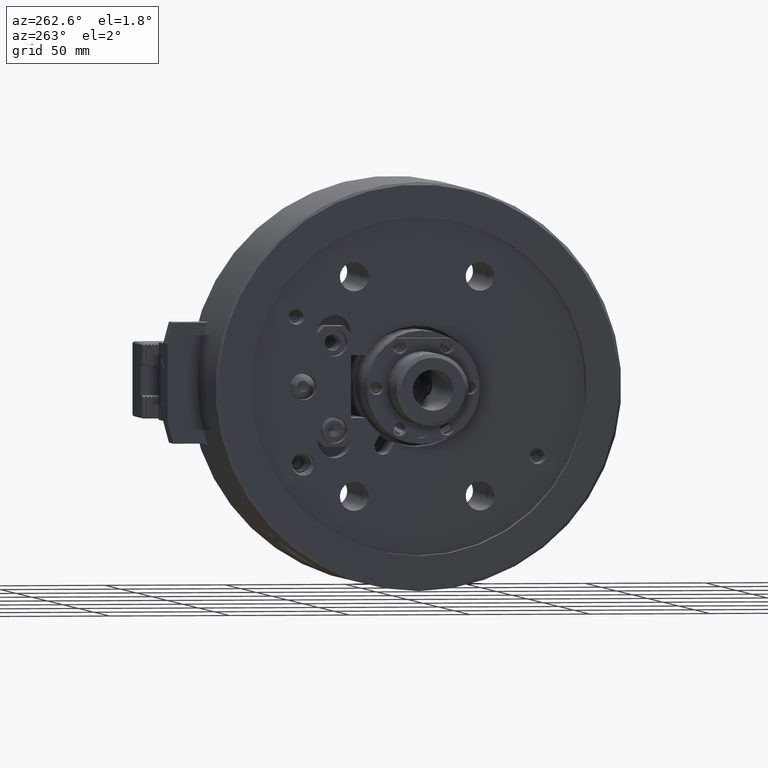
[diagram: clean part render]
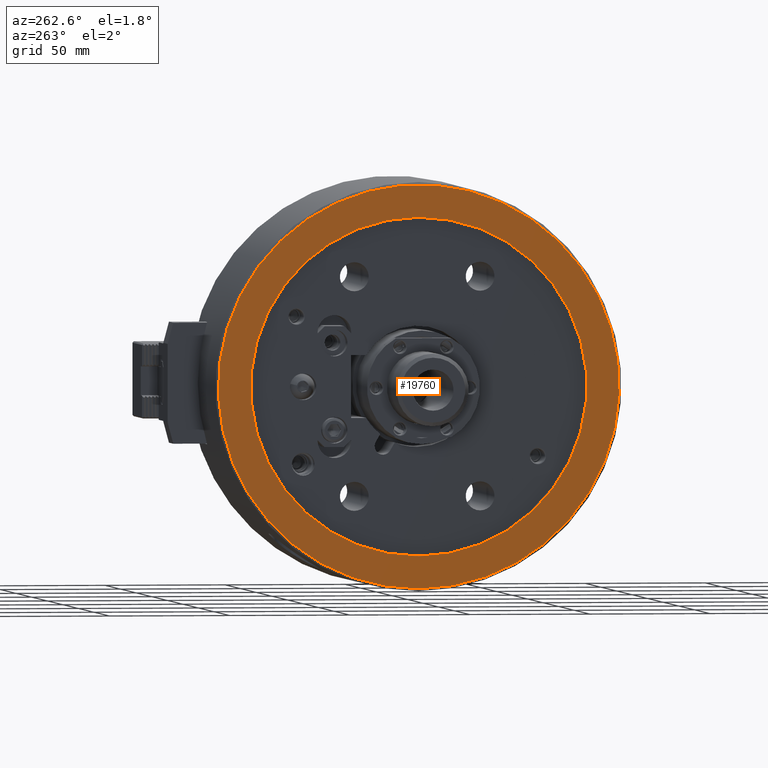
[diagram: same view with one face highlighted and labeled with its STEP entity id]
A machine part, auxiliary view. The second image highlights one B-rep face of the part: STEP entity #19760.
In plain terms, the highlighted planar face has unit normal (-1, 0, 0).
Its self-contained STEP definition (entity closure, byte-faithful):
#4802=ORIENTED_EDGE('',*,*,#10330,.T.);
#4803=ORIENTED_EDGE('',*,*,#10331,.F.);
#10330=EDGE_CURVE('',#13090,#13090,#15042,.T.);
#10331=EDGE_CURVE('',#13091,#13091,#15043,.T.);
#13090=VERTEX_POINT('',#29023);
#13091=VERTEX_POINT('',#29026);
#15042=CIRCLE('',#21228,70.);
#15043=CIRCLE('',#21230,83.5);
#15646=EDGE_LOOP('',(#4802));
#15647=EDGE_LOOP('',(#4803));
#17256=FACE_BOUND('',#15646,.T.);
#17257=FACE_BOUND('',#15647,.T.);
#18876=PLANE('',#21229);
#19760=ADVANCED_FACE('',(#17256,#17257),#18876,.T.);
#21228=AXIS2_PLACEMENT_3D('',#29022,#23184,#23185);
#21229=AXIS2_PLACEMENT_3D('',#29024,#23186,#23187);
#21230=AXIS2_PLACEMENT_3D('',#29025,#23188,#23189);
#23184=DIRECTION('',(1.,0.,0.));
#23185=DIRECTION('',(0.,0.,-1.));
#23186=DIRECTION('',(-1.,0.,0.));
#23187=DIRECTION('',(0.,0.,1.));
#23188=DIRECTION('',(1.,0.,0.));
#23189=DIRECTION('',(0.,0.,-1.));
#29022=CARTESIAN_POINT('',(-86.,0.,0.));
#29023=CARTESIAN_POINT('',(-86.,0.,-70.));
#29024=CARTESIAN_POINT('',(-86.,-2.91538860652633E-13,-83.5));
#29025=CARTESIAN_POINT('',(-86.,0.,0.));
#29026=CARTESIAN_POINT('',(-86.,0.,-83.5));